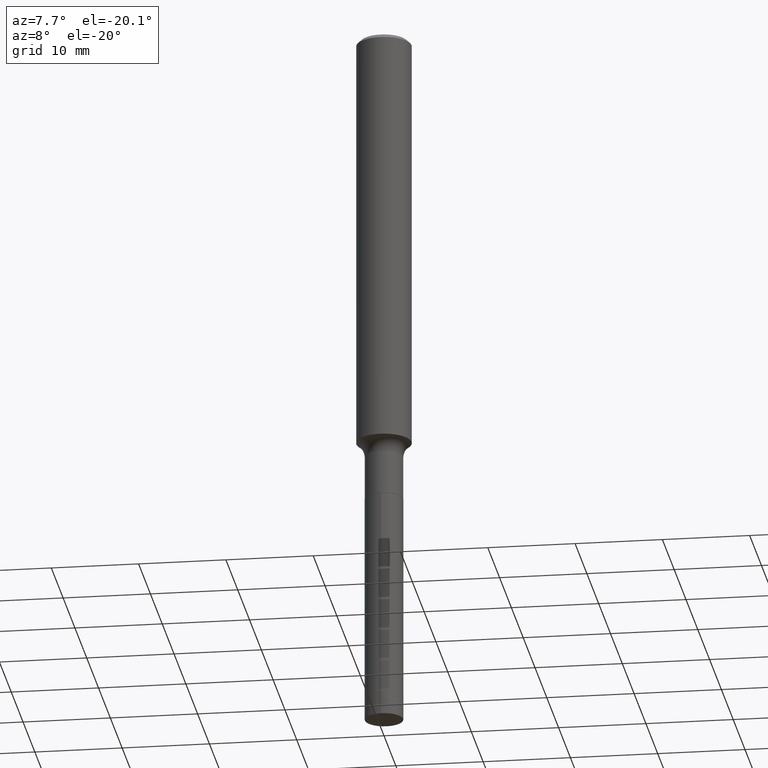
[diagram: clean part render]
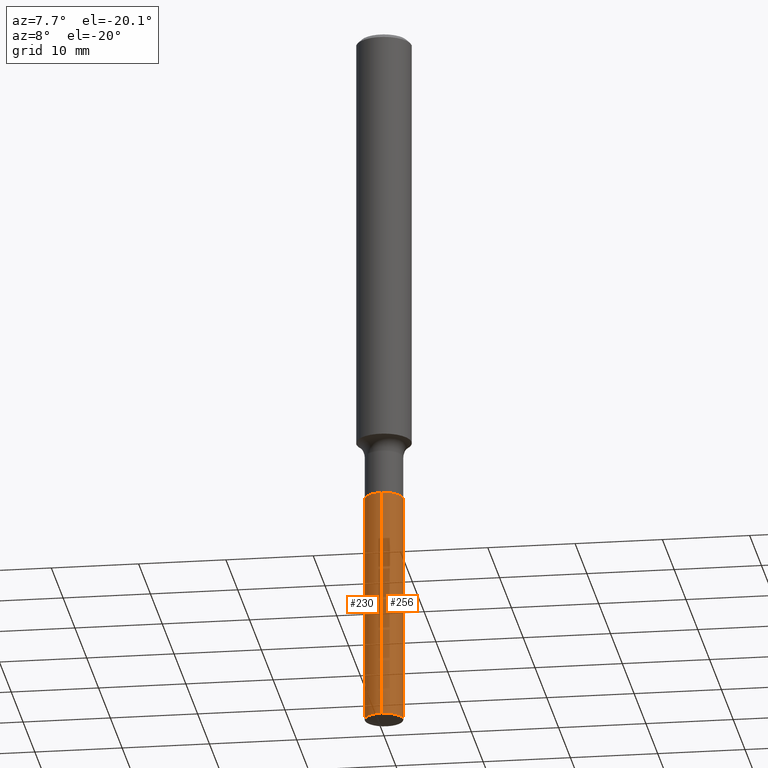
[diagram: same view with one multi-face feature highlighted, each face labeled with its STEP entity id]
A machine part, auxiliary view. The highlighted faces form ONE feature: a constant-radius fillet chain: 2 tangent blend faces with common blend radius 2.1971 mm. The faces share edges in the B-rep.
Their STEP definitions:
[1] entity #230 (Cylinder):
#5 = EDGE_CURVE ( 'NONE', #45, #485, #30, .T. ) ;
#10 = LINE ( 'NONE', #88, #301 ) ;
#19 = CIRCLE ( 'NONE', #197, 0.08649999999999997968 ) ;
#30 = LINE ( 'NONE', #69, #418 ) ;
#41 = AXIS2_PLACEMENT_3D ( 'NONE', #172, #175, #185 ) ;
#44 = EDGE_CURVE ( 'NONE', #45, #315, #491, .T. ) ;
#45 = VERTEX_POINT ( 'NONE', #116 ) ;
#50 = CYLINDRICAL_SURFACE ( 'NONE', #489, 0.08649999999999997968 ) ;
#54 = DIRECTION ( 'NONE',  ( -6.982962677686265922E-15, -1.000000000000000000, 3.158205773022270164E-15 ) ) ;
#56 = CARTESIAN_POINT ( 'NONE',  ( 5.314003715840301789E-29, -7.586988949306155855E-15, -2.173000000000000043 ) ) ;
#63 = EDGE_LOOP ( 'NONE', ( #438, #170, #385, #288 ) ) ;
#69 = CARTESIAN_POINT ( 'NONE',  ( 6.146194664325395673E-16, 0.08649999999999240241, -2.173000000000000487 ) ) ;
#88 = CARTESIAN_POINT ( 'NONE',  ( -6.040262716198086804E-16, -0.08650000000000757083, -2.172999999999999599 ) ) ;
#103 = VERTEX_POINT ( 'NONE', #275 ) ;
#112 = CARTESIAN_POINT ( 'NONE',  ( 6.146194664325655011E-16, 0.08649999999999240241, -2.173000000000000487 ) ) ;
#116 = CARTESIAN_POINT ( 'NONE',  ( 6.146194664325653039E-16, 0.08649999999998869704, -3.222726654761968401 ) ) ;
#127 = CARTESIAN_POINT ( 'NONE',  ( -6.040262716197829438E-16, -0.08650000000001123457, -3.222726654761967069 ) ) ;
#159 = DIRECTION ( 'NONE',  ( -2.445486309899651234E-29, 3.491456272527711520E-15, 1.000000000000000000 ) ) ;
#163 = DIRECTION ( 'NONE',  ( -2.445486309899650954E-29, 3.491456272527711520E-15, 1.000000000000000000 ) ) ;
#170 = ORIENTED_EDGE ( 'NONE', *, *, #44, .T. ) ;
#172 = CARTESIAN_POINT ( 'NONE',  ( 7.881095879197450537E-29, -1.125206366251435864E-14, -3.222726654761967957 ) ) ;
#175 = DIRECTION ( 'NONE',  ( -2.445486309899650954E-29, 3.491456272527711520E-15, 1.000000000000000000 ) ) ;
#183 = DIRECTION ( 'NONE',  ( -2.445486309899651234E-29, 3.491456272527711520E-15, 1.000000000000000000 ) ) ;
#185 = DIRECTION ( 'NONE',  ( -6.982962677686265922E-15, -1.000000000000000000, 6.316411546044540328E-15 ) ) ;
#197 = AXIS2_PLACEMENT_3D ( 'NONE', #348, #163, #54 ) ;
#201 = DIRECTION ( 'NONE',  ( -2.445486309899650954E-29, 3.491456272527711520E-15, 1.000000000000000000 ) ) ;
#230 = ADVANCED_FACE ( 'NONE', ( #238 ), #50, .T. ) ;
#238 = FACE_OUTER_BOUND ( 'NONE', #63, .T. ) ;
#275 = CARTESIAN_POINT ( 'NONE',  ( -6.040262716198086804E-16, -0.08650000000000757083, -2.172999999999999599 ) ) ;
#281 = EDGE_CURVE ( 'NONE', #315, #103, #10, .T. ) ;
#288 = ORIENTED_EDGE ( 'NONE', *, *, #389, .F. ) ;
#301 = VECTOR ( 'NONE', #159, 39.37007874015748143 ) ;
#315 = VERTEX_POINT ( 'NONE', #127 ) ;
#345 = DIRECTION ( 'NONE',  ( -6.982962677686265922E-15, -1.000000000000000000, 3.158205773022270164E-15 ) ) ;
#348 = CARTESIAN_POINT ( 'NONE',  ( 5.314003715840301789E-29, -7.586988949306155855E-15, -2.173000000000000043 ) ) ;
#385 = ORIENTED_EDGE ( 'NONE', *, *, #281, .T. ) ;
#389 = EDGE_CURVE ( 'NONE', #485, #103, #19, .T. ) ;
#418 = VECTOR ( 'NONE', #183, 39.37007874015748143 ) ;
#438 = ORIENTED_EDGE ( 'NONE', *, *, #5, .F. ) ;
#485 = VERTEX_POINT ( 'NONE', #112 ) ;
#489 = AXIS2_PLACEMENT_3D ( 'NONE', #56, #201, #345 ) ;
#491 = CIRCLE ( 'NONE', #41, 0.08649999999999997968 ) ;
[2] entity #256 (Cylinder):
#4 = ORIENTED_EDGE ( 'NONE', *, *, #62, .T. ) ;
#5 = EDGE_CURVE ( 'NONE', #45, #485, #30, .T. ) ;
#10 = LINE ( 'NONE', #88, #301 ) ;
#20 = EDGE_CURVE ( 'NONE', #103, #485, #354, .T. ) ;
#21 = DIRECTION ( 'NONE',  ( -2.445486309899650954E-29, 3.491456272527711520E-15, 1.000000000000000000 ) ) ;
#30 = LINE ( 'NONE', #69, #418 ) ;
#45 = VERTEX_POINT ( 'NONE', #116 ) ;
#62 = EDGE_CURVE ( 'NONE', #315, #45, #221, .T. ) ;
#65 = CARTESIAN_POINT ( 'NONE',  ( 5.314003715840301789E-29, -7.586988949306155855E-15, -2.173000000000000043 ) ) ;
#69 = CARTESIAN_POINT ( 'NONE',  ( 6.146194664325395673E-16, 0.08649999999999240241, -2.173000000000000487 ) ) ;
#88 = CARTESIAN_POINT ( 'NONE',  ( -6.040262716198086804E-16, -0.08650000000000757083, -2.172999999999999599 ) ) ;
#91 = AXIS2_PLACEMENT_3D ( 'NONE', #262, #21, #326 ) ;
#103 = VERTEX_POINT ( 'NONE', #275 ) ;
#110 = DIRECTION ( 'NONE',  ( -6.982962677686265922E-15, -1.000000000000000000, 3.158205773022270164E-15 ) ) ;
#112 = CARTESIAN_POINT ( 'NONE',  ( 6.146194664325655011E-16, 0.08649999999999240241, -2.173000000000000487 ) ) ;
#116 = CARTESIAN_POINT ( 'NONE',  ( 6.146194664325653039E-16, 0.08649999999998869704, -3.222726654761968401 ) ) ;
#127 = CARTESIAN_POINT ( 'NONE',  ( -6.040262716197829438E-16, -0.08650000000001123457, -3.222726654761967069 ) ) ;
#159 = DIRECTION ( 'NONE',  ( -2.445486309899651234E-29, 3.491456272527711520E-15, 1.000000000000000000 ) ) ;
#165 = AXIS2_PLACEMENT_3D ( 'NONE', #65, #216, #110 ) ;
#183 = DIRECTION ( 'NONE',  ( -2.445486309899651234E-29, 3.491456272527711520E-15, 1.000000000000000000 ) ) ;
#216 = DIRECTION ( 'NONE',  ( -2.445486309899650954E-29, 3.491456272527711520E-15, 1.000000000000000000 ) ) ;
#221 = CIRCLE ( 'NONE', #91, 0.08649999999999997968 ) ;
#254 = FACE_OUTER_BOUND ( 'NONE', #318, .T. ) ;
#256 = ADVANCED_FACE ( 'NONE', ( #254 ), #407, .T. ) ;
#262 = CARTESIAN_POINT ( 'NONE',  ( 7.881095879197450537E-29, -1.125206366251435864E-14, -3.222726654761967957 ) ) ;
#275 = CARTESIAN_POINT ( 'NONE',  ( -6.040262716198086804E-16, -0.08650000000000757083, -2.172999999999999599 ) ) ;
#281 = EDGE_CURVE ( 'NONE', #315, #103, #10, .T. ) ;
#301 = VECTOR ( 'NONE', #159, 39.37007874015748143 ) ;
#311 = ORIENTED_EDGE ( 'NONE', *, *, #20, .F. ) ;
#315 = VERTEX_POINT ( 'NONE', #127 ) ;
#318 = EDGE_LOOP ( 'NONE', ( #4, #408, #311, #432 ) ) ;
#326 = DIRECTION ( 'NONE',  ( -6.982962677686265922E-15, -1.000000000000000000, 6.316411546044540328E-15 ) ) ;
#354 = CIRCLE ( 'NONE', #458, 0.08649999999999997968 ) ;
#363 = DIRECTION ( 'NONE',  ( -6.982962677686265922E-15, -1.000000000000000000, 3.158205773022270164E-15 ) ) ;
#405 = DIRECTION ( 'NONE',  ( -2.445486309899650954E-29, 3.491456272527711520E-15, 1.000000000000000000 ) ) ;
#407 = CYLINDRICAL_SURFACE ( 'NONE', #165, 0.08649999999999997968 ) ;
#408 = ORIENTED_EDGE ( 'NONE', *, *, #5, .T. ) ;
#409 = CARTESIAN_POINT ( 'NONE',  ( 5.314003715840301789E-29, -7.586988949306155855E-15, -2.173000000000000043 ) ) ;
#418 = VECTOR ( 'NONE', #183, 39.37007874015748143 ) ;
#432 = ORIENTED_EDGE ( 'NONE', *, *, #281, .F. ) ;
#458 = AXIS2_PLACEMENT_3D ( 'NONE', #409, #405, #363 ) ;
#485 = VERTEX_POINT ( 'NONE', #112 ) ;